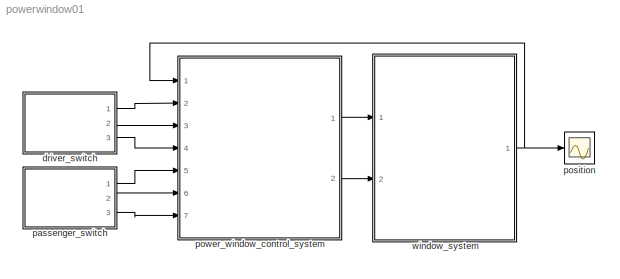
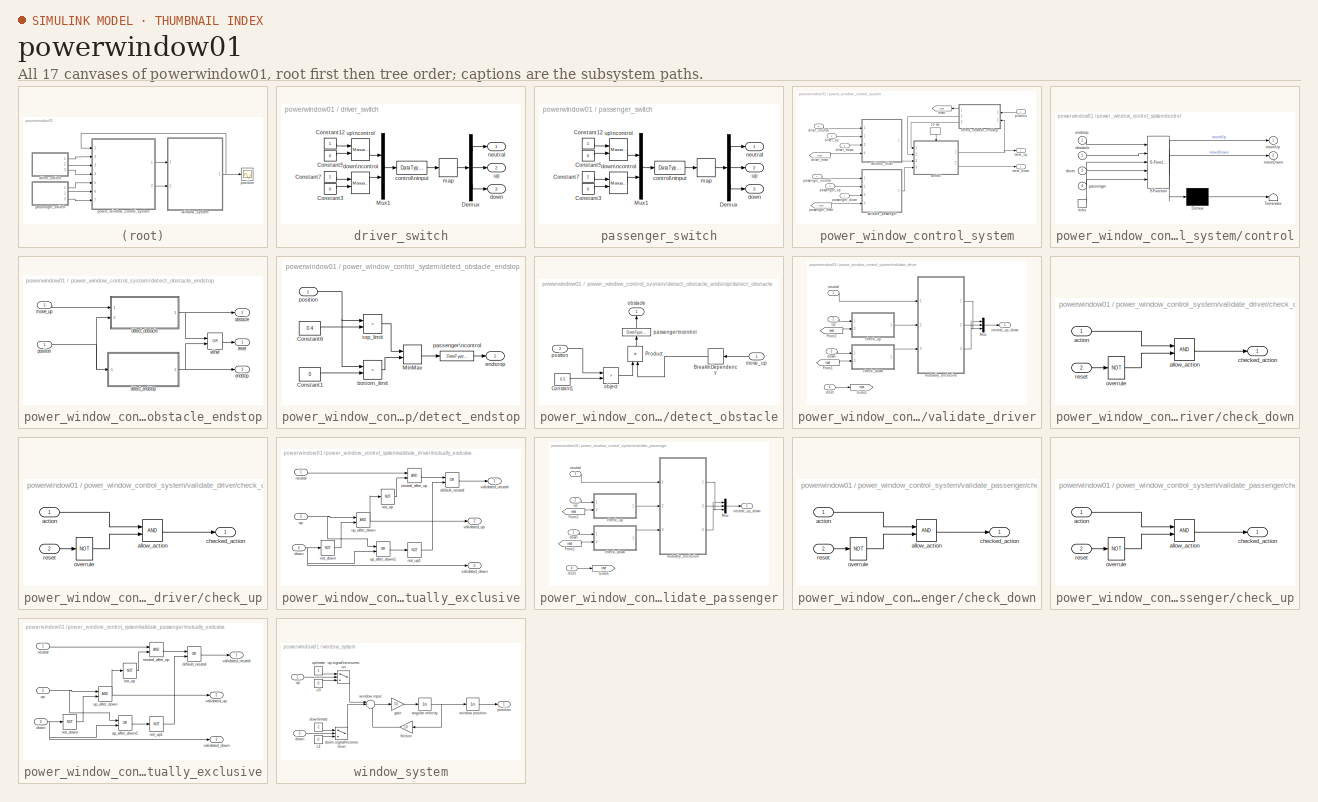
[diagram: thumbnail index - all 17 canvases of the model, root first then tree order]
MODEL powerwindow01
KIND model
BLOCK [SubSystem] driver_switch
  MinAlgLoopOccurrences = off
  Ports = [0, 3]
  PropExecContextAcrossSSBoundary = on
  RTWSystemCode = Auto
  TreatAsAtomicUnit = off
BLOCK [Constant] driver_switch/Constant12
BLOCK [Constant] driver_switch/Constant3
  Value = 0
BLOCK [Constant] driver_switch/Constant5
  Value = 0
BLOCK [Constant] driver_switch/Constant7
BLOCK [Demux] driver_switch/Demux
  Outputs = 3
  Ports = [1, 3]
BLOCK [Mux] driver_switch/Mux1
  DisplayOption = bar
  Inputs = 2
  Ports = [2, 1]
BLOCK [DataTypeConversion] driver_switch/control\ninput
  OutDataTypeMode = boolean
BLOCK [Outport] driver_switch/down
  IconDisplay = Port number
  Port = 3
BLOCK [Reference] driver_switch/down\ncontrol  REF=simulink/Signal\nRouting/Manual Switch
  Ports = [2, 1]
  SourceBlock = simulink/Signal\nRouting/Manual Switch
  SourceType = Manual Switch
  action = 0
  sw = 0
BLOCK [CombinatorialLogic] driver_switch/map
  TruthTable = [1 0 0;0 0 1;0 1 0;1 0 0]
BLOCK [Outport] driver_switch/neutral
  IconDisplay = Port number
BLOCK [Outport] driver_switch/up
  IconDisplay = Port number
  Port = 2
BLOCK [Reference] driver_switch/up\ncontrol  REF=simulink/Signal\nRouting/Manual Switch
  Ports = [2, 1]
  SourceBlock = simulink/Signal\nRouting/Manual Switch
  SourceType = Manual Switch
  action = 0
  sw = 0
BLOCK [SubSystem] passenger_switch
  MinAlgLoopOccurrences = off
  Ports = [0, 3]
  PropExecContextAcrossSSBoundary = on
  RTWSystemCode = Auto
  TreatAsAtomicUnit = off
BLOCK [Constant] passenger_switch/Constant12
BLOCK [Constant] passenger_switch/Constant3
  Value = 0
BLOCK [Constant] passenger_switch/Constant5
  Value = 0
BLOCK [Constant] passenger_switch/Constant7
BLOCK [Demux] passenger_switch/Demux
  Outputs = 3
  Ports = [1, 3]
BLOCK [Mux] passenger_switch/Mux1
  DisplayOption = bar
  Inputs = 2
  Ports = [2, 1]
BLOCK [DataTypeConversion] passenger_switch/control\ninput
  OutDataTypeMode = boolean
BLOCK [Outport] passenger_switch/down
  IconDisplay = Port number
  Port = 3
BLOCK [Reference] passenger_switch/down\ncontrol  REF=simulink/Signal\nRouting/Manual Switch
  Ports = [2, 1]
  SourceBlock = simulink/Signal\nRouting/Manual Switch
  SourceType = Manual Switch
  action = 0
  sw = 0
BLOCK [CombinatorialLogic] passenger_switch/map
  TruthTable = [1 0 0;0 0 1;0 1 0;1 0 0]
BLOCK [Outport] passenger_switch/neutral
  IconDisplay = Port number
BLOCK [Outport] passenger_switch/up
  IconDisplay = Port number
  Port = 2
BLOCK [Reference] passenger_switch/up\ncontrol  REF=simulink/Signal\nRouting/Manual Switch
  Ports = [2, 1]
  SourceBlock = simulink/Signal\nRouting/Manual Switch
  SourceType = Manual Switch
  action = 0
  sw = 0
BLOCK [Scope] position
  DataFormat = Array
  LimitDataPoints = off
  NumInputPorts = 1
  Ports = [1]
  YMax = 0.5
  YMin = -0.05
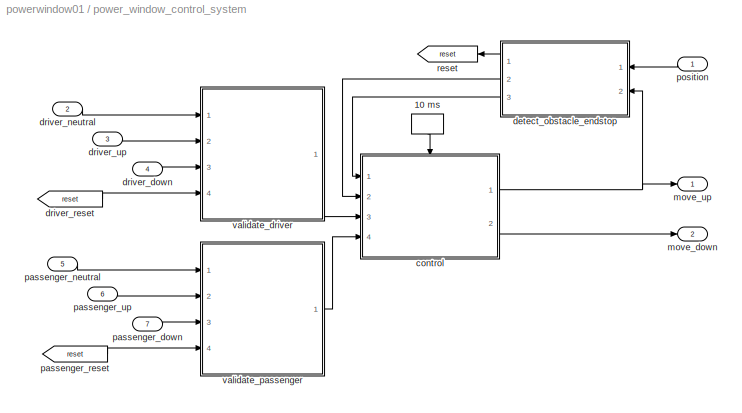
BLOCK [SubSystem] power_window_control_system
  MinAlgLoopOccurrences = off
  Ports = [7, 2]
  PropExecContextAcrossSSBoundary = on
  RTWSystemCode = Auto
  TreatAsAtomicUnit = off
BLOCK [DiscretePulseGenerator] power_window_control_system/10 ms
  Ports = [0, 1]
  SampleTime = 10e-3
BLOCK [SubSystem] power_window_control_system/control
  MaskDescription = Stateflow diagram
  MaskDisplay = plot(sf('Private','sfblk','xIcon'),sf('Private','sfblk','yIcon'));text(0.5,0,sf('Private', 'sfblk', 'tIcon'),'HorizontalAl','Center','VerticalAl','Bottom');
  MaskIconFrame = off
  MaskIconOpaque = off
  MaskIconRotate = none
  MaskIconUnits = autoscale
  MaskSelfModifiable = on
  MaskType = Stateflow
  MinAlgLoopOccurrences = off
  Ports = [4, 2, 0, 1]
  PropExecContextAcrossSSBoundary = on
  RTWSystemCode = Auto
  TreatAsAtomicUnit = on
BLOCK [Demux] power_window_control_system/control/ Demux 
  Outputs = 1
  Ports = [1, 1]
BLOCK [S-Function] power_window_control_system/control/ SFunction 
  FunctionName = sf_sfun
  PortCounts = [5 3]
  Ports = [5, 3]
  Tag = Stateflow S-Function powerwindow01 2
BLOCK [Terminator] power_window_control_system/control/ Terminator 
BLOCK [Inport] power_window_control_system/control/driver
  IconDisplay = Port number
  LatchInput = off
  Port = 3
BLOCK [Inport] power_window_control_system/control/endstop
  IconDisplay = Port number
  LatchInput = off
  Port = 1
BLOCK [Outport] power_window_control_system/control/moveDown
  IconDisplay = Port number
  Port = 2
BLOCK [Outport] power_window_control_system/control/moveUp
  IconDisplay = Port number
BLOCK [Inport] power_window_control_system/control/obstacle
  IconDisplay = Port number
  LatchInput = off
  Port = 2
BLOCK [Inport] power_window_control_system/control/passenger
  IconDisplay = Port number
  LatchInput = off
  Port = 4
BLOCK [TriggerPort] power_window_control_system/control/ticks
  Ports = [0, 1]
  ShowOutputPort = on
  TriggerType = either
BLOCK [SubSystem] power_window_control_system/detect_obstacle_endstop
  MinAlgLoopOccurrences = off
  Ports = [2, 3]
  PropExecContextAcrossSSBoundary = on
  RTWSystemCode = Auto
  TreatAsAtomicUnit = off
BLOCK [SubSystem] power_window_control_system/detect_obstacle_endstop/detect_endstop
  MinAlgLoopOccurrences = off
  Ports = [1, 1]
  PropExecContextAcrossSSBoundary = on
  RTWSystemCode = Auto
  TreatAsAtomicUnit = off
BLOCK [Constant] power_window_control_system/detect_obstacle_endstop/detect_endstop/Constant1
  Value = 0
BLOCK [Constant] power_window_control_system/detect_obstacle_endstop/detect_endstop/Constant6
  Value = 0.4
BLOCK [MinMax] power_window_control_system/detect_obstacle_endstop/detect_endstop/MinMax
  Function = max
  Inputs = 2
  Ports = [2, 1]
BLOCK [RelationalOperator] power_window_control_system/detect_obstacle_endstop/detect_endstop/bottom_limit
  Operator = <
BLOCK [Outport] power_window_control_system/detect_obstacle_endstop/detect_endstop/endstop
  IconDisplay = Port number
BLOCK [DataTypeConversion] power_window_control_system/detect_obstacle_endstop/detect_endstop/passenger\ncontrol
  OutDataTypeMode = boolean
BLOCK [Inport] power_window_control_system/detect_obstacle_endstop/detect_endstop/position
  IconDisplay = Port number
  LatchInput = off
  Port = 1
BLOCK [RelationalOperator] power_window_control_system/detect_obstacle_endstop/detect_endstop/top_limit
  Operator = >
BLOCK [SubSystem] power_window_control_system/detect_obstacle_endstop/detect_obstacle
  MinAlgLoopOccurrences = off
  Ports = [2, 1]
  PropExecContextAcrossSSBoundary = on
  RTWSystemCode = Auto
  TreatAsAtomicUnit = off
BLOCK [Memory] power_window_control_system/detect_obstacle_endstop/detect_obstacle/Break\nDependency
BLOCK [Constant] power_window_control_system/detect_obstacle_endstop/detect_obstacle/Constant1
  Value = 0.3
BLOCK [Product] power_window_control_system/detect_obstacle_endstop/detect_obstacle/Product
  Ports = [2, 1]
  RndMeth = Floor
BLOCK [Inport] power_window_control_system/detect_obstacle_endstop/detect_obstacle/move_up
  IconDisplay = Port number
  LatchInput = off
  Port = 1
BLOCK [RelationalOperator] power_window_control_system/detect_obstacle_endstop/detect_obstacle/object
  Operator = >
BLOCK [Outport] power_window_control_system/detect_obstacle_endstop/detect_obstacle/obstacle
  IconDisplay = Port number
BLOCK [DataTypeConversion] power_window_control_system/detect_obstacle_endstop/detect_obstacle/passenger\ncontrol
  OutDataTypeMode = boolean
BLOCK [Inport] power_window_control_system/detect_obstacle_endstop/detect_obstacle/position
  IconDisplay = Port number
  LatchInput = off
  Port = 2
BLOCK [Logic] power_window_control_system/detect_obstacle_endstop/either
  Operator = OR
  Ports = [2, 1]
BLOCK [Outport] power_window_control_system/detect_obstacle_endstop/endstop
  IconDisplay = Port number
  Port = 3
BLOCK [Inport] power_window_control_system/detect_obstacle_endstop/move_up
  IconDisplay = Port number
  LatchInput = off
  Port = 2
BLOCK [Outport] power_window_control_system/detect_obstacle_endstop/obstacle
  IconDisplay = Port number
  Port = 2
BLOCK [Inport] power_window_control_system/detect_obstacle_endstop/position
  IconDisplay = Port number
  LatchInput = off
  Port = 1
BLOCK [Outport] power_window_control_system/detect_obstacle_endstop/reset
  IconDisplay = Port number
BLOCK [Inport] power_window_control_system/driver_down
  IconDisplay = Port number
  LatchInput = off
  Port = 4
BLOCK [Inport] power_window_control_system/driver_neutral
  IconDisplay = Port number
  LatchInput = off
  Port = 2
BLOCK [From] power_window_control_system/driver_reset
  CloseFcn = tagdialog Close
  DialogController = Simulink.DDGSource
  GotoTag = reset
BLOCK [Inport] power_window_control_system/driver_up
  IconDisplay = Port number
  LatchInput = off
  Port = 3
BLOCK [Outport] power_window_control_system/move_down
  IconDisplay = Port number
  Port = 2
BLOCK [Outport] power_window_control_system/move_up
  IconDisplay = Port number
BLOCK [Inport] power_window_control_system/passenger_down
  IconDisplay = Port number
  LatchInput = off
  Port = 7
BLOCK [Inport] power_window_control_system/passenger_neutral
  IconDisplay = Port number
  LatchInput = off
  Port = 5
BLOCK [From] power_window_control_system/passenger_reset
  CloseFcn = tagdialog Close
  DialogController = Simulink.DDGSource
  GotoTag = reset
BLOCK [Inport] power_window_control_system/passenger_up
  IconDisplay = Port number
  LatchInput = off
  Port = 6
BLOCK [Inport] power_window_control_system/position
  IconDisplay = Port number
  LatchInput = off
  Port = 1
BLOCK [Goto] power_window_control_system/reset
  DialogController = Simulink.DDGSource
  GotoTag = reset
  TagVisibility = local
BLOCK [SubSystem] power_window_control_system/validate_driver
  MinAlgLoopOccurrences = off
  Ports = [4, 1]
  PropExecContextAcrossSSBoundary = on
  RTWSystemCode = Auto
  TreatAsAtomicUnit = off
BLOCK [From] power_window_control_system/validate_driver/From1
  CloseFcn = tagdialog Close
  DialogController = Simulink.DDGSource
  GotoTag = reset
BLOCK [From] power_window_control_system/validate_driver/From2
  CloseFcn = tagdialog Close
  DialogController = Simulink.DDGSource
  GotoTag = reset
BLOCK [Goto] power_window_control_system/validate_driver/Goto1
  DialogController = Simulink.DDGSource
  GotoTag = reset
  TagVisibility = local
BLOCK [Mux] power_window_control_system/validate_driver/Mux
  DisplayOption = bar
  Inputs = 3
  Ports = [3, 1]
BLOCK [SubSystem] power_window_control_system/validate_driver/check_down
  MinAlgLoopOccurrences = off
  Ports = [2, 1]
  PropExecContextAcrossSSBoundary = on
  RTWSystemCode = Auto
  TreatAsAtomicUnit = off
BLOCK [Inport] power_window_control_system/validate_driver/check_down/action
  IconDisplay = Port number
  LatchInput = off
  Port = 1
BLOCK [Logic] power_window_control_system/validate_driver/check_down/allow_action
  Ports = [2, 1]
BLOCK [Outport] power_window_control_system/validate_driver/check_down/checked_action
  IconDisplay = Port number
BLOCK [Logic] power_window_control_system/validate_driver/check_down/overrule
  Operator = NOT
  Ports = [1, 1]
BLOCK [Inport] power_window_control_system/validate_driver/check_down/reset
  IconDisplay = Port number
  LatchInput = off
  Port = 2
BLOCK [SubSystem] power_window_control_system/validate_driver/check_up
  MinAlgLoopOccurrences = off
  Ports = [2, 1]
  PropExecContextAcrossSSBoundary = on
  RTWSystemCode = Auto
  TreatAsAtomicUnit = off
BLOCK [Inport] power_window_control_system/validate_driver/check_up/action
  IconDisplay = Port number
  LatchInput = off
  Port = 1
BLOCK [Logic] power_window_control_system/validate_driver/check_up/allow_action
  Ports = [2, 1]
BLOCK [Outport] power_window_control_system/validate_driver/check_up/checked_action
  IconDisplay = Port number
BLOCK [Logic] power_window_control_system/validate_driver/check_up/overrule
  Operator = NOT
  Ports = [1, 1]
BLOCK [Inport] power_window_control_system/validate_driver/check_up/reset
  IconDisplay = Port number
  LatchInput = off
  Port = 2
BLOCK [Inport] power_window_control_system/validate_driver/down
  IconDisplay = Port number
  LatchInput = off
  Port = 3
BLOCK [SubSystem] power_window_control_system/validate_driver/mutually_exclusive
  MinAlgLoopOccurrences = off
  Ports = [3, 3]
  PropExecContextAcrossSSBoundary = on
  RTWSystemCode = Auto
  TreatAsAtomicUnit = off
BLOCK [Logic] power_window_control_system/validate_driver/mutually_exclusive/default_neutral
  Operator = OR
  Ports = [2, 1]
BLOCK [Inport] power_window_control_system/validate_driver/mutually_exclusive/down
  IconDisplay = Port number
  LatchInput = off
  Port = 3
BLOCK [Inport] power_window_control_system/validate_driver/mutually_exclusive/neutral
  IconDisplay = Port number
  LatchInput = off
  Port = 1
BLOCK [Logic] power_window_control_system/validate_driver/mutually_exclusive/neutral_after_up
  Ports = [2, 1]
BLOCK [Logic] power_window_control_system/validate_driver/mutually_exclusive/not_down
  Operator = NOT
  Ports = [1, 1]
BLOCK [Logic] power_window_control_system/validate_driver/mutually_exclusive/not_up
  Operator = NOT
  Ports = [1, 1]
BLOCK [Logic] power_window_control_system/validate_driver/mutually_exclusive/not_up1
  Operator = NOT
  Ports = [1, 1]
BLOCK [Inport] power_window_control_system/validate_driver/mutually_exclusive/up
  IconDisplay = Port number
  LatchInput = off
  Port = 2
BLOCK [Logic] power_window_control_system/validate_driver/mutually_exclusive/up_after_down
  Ports = [2, 1]
BLOCK [Logic] power_window_control_system/validate_driver/mutually_exclusive/up_after_down1
  Operator = OR
  Ports = [2, 1]
BLOCK [Outport] power_window_control_system/validate_driver/mutually_exclusive/validated_down
  IconDisplay = Port number
  Port = 3
BLOCK [Outport] power_window_control_system/validate_driver/mutually_exclusive/validated_neutral
  IconDisplay = Port number
BLOCK [Outport] power_window_control_system/validate_driver/mutually_exclusive/validated_up
  IconDisplay = Port number
  Port = 2
BLOCK [Inport] power_window_control_system/validate_driver/neutral
  IconDisplay = Port number
  LatchInput = off
  Port = 1
BLOCK [Outport] power_window_control_system/validate_driver/neutral_up_down
  IconDisplay = Port number
BLOCK [Inport] power_window_control_system/validate_driver/reset
  IconDisplay = Port number
  LatchInput = off
  Port = 4
BLOCK [Inport] power_window_control_system/validate_driver/up
  IconDisplay = Port number
  LatchInput = off
  Port = 2
BLOCK [SubSystem] power_window_control_system/validate_passenger
  MinAlgLoopOccurrences = off
  Ports = [4, 1]
  PropExecContextAcrossSSBoundary = on
  RTWSystemCode = Auto
  TreatAsAtomicUnit = off
BLOCK [From] power_window_control_system/validate_passenger/From1
  CloseFcn = tagdialog Close
  DialogController = Simulink.DDGSource
  GotoTag = reset
BLOCK [From] power_window_control_system/validate_passenger/From2
  CloseFcn = tagdialog Close
  DialogController = Simulink.DDGSource
  GotoTag = reset
BLOCK [Goto] power_window_control_system/validate_passenger/Goto1
  DialogController = Simulink.DDGSource
  GotoTag = reset
  TagVisibility = local
BLOCK [Mux] power_window_control_system/validate_passenger/Mux
  DisplayOption = bar
  Inputs = 3
  Ports = [3, 1]
BLOCK [SubSystem] power_window_control_system/validate_passenger/check_down
  MinAlgLoopOccurrences = off
  Ports = [2, 1]
  PropExecContextAcrossSSBoundary = on
  RTWSystemCode = Auto
  TreatAsAtomicUnit = off
BLOCK [Inport] power_window_control_system/validate_passenger/check_down/action
  IconDisplay = Port number
  LatchInput = off
  Port = 1
BLOCK [Logic] power_window_control_system/validate_passenger/check_down/allow_action
  Ports = [2, 1]
BLOCK [Outport] power_window_control_system/validate_passenger/check_down/checked_action
  IconDisplay = Port number
BLOCK [Logic] power_window_control_system/validate_passenger/check_down/overrule
  Operator = NOT
  Ports = [1, 1]
BLOCK [Inport] power_window_control_system/validate_passenger/check_down/reset
  IconDisplay = Port number
  LatchInput = off
  Port = 2
BLOCK [SubSystem] power_window_control_system/validate_passenger/check_up
  MinAlgLoopOccurrences = off
  Ports = [2, 1]
  PropExecContextAcrossSSBoundary = on
  RTWSystemCode = Auto
  TreatAsAtomicUnit = off
BLOCK [Inport] power_window_control_system/validate_passenger/check_up/action
  IconDisplay = Port number
  LatchInput = off
  Port = 1
BLOCK [Logic] power_window_control_system/validate_passenger/check_up/allow_action
  Ports = [2, 1]
BLOCK [Outport] power_window_control_system/validate_passenger/check_up/checked_action
  IconDisplay = Port number
BLOCK [Logic] power_window_control_system/validate_passenger/check_up/overrule
  Operator = NOT
  Ports = [1, 1]
BLOCK [Inport] power_window_control_system/validate_passenger/check_up/reset
  IconDisplay = Port number
  LatchInput = off
  Port = 2
BLOCK [Inport] power_window_control_system/validate_passenger/down
  IconDisplay = Port number
  LatchInput = off
  Port = 3
BLOCK [SubSystem] power_window_control_system/validate_passenger/mutually_exclusive
  MinAlgLoopOccurrences = off
  Ports = [3, 3]
  PropExecContextAcrossSSBoundary = on
  RTWSystemCode = Auto
  TreatAsAtomicUnit = off
BLOCK [Logic] power_window_control_system/validate_passenger/mutually_exclusive/default_neutral
  Operator = OR
  Ports = [2, 1]
BLOCK [Inport] power_window_control_system/validate_passenger/mutually_exclusive/down
  IconDisplay = Port number
  LatchInput = off
  Port = 3
BLOCK [Inport] power_window_control_system/validate_passenger/mutually_exclusive/neutral
  IconDisplay = Port number
  LatchInput = off
  Port = 1
BLOCK [Logic] power_window_control_system/validate_passenger/mutually_exclusive/neutral_after_up
  Ports = [2, 1]
BLOCK [Logic] power_window_control_system/validate_passenger/mutually_exclusive/not_down
  Operator = NOT
  Ports = [1, 1]
BLOCK [Logic] power_window_control_system/validate_passenger/mutually_exclusive/not_up
  Operator = NOT
  Ports = [1, 1]
BLOCK [Logic] power_window_control_system/validate_passenger/mutually_exclusive/not_up1
  Operator = NOT
  Ports = [1, 1]
BLOCK [Inport] power_window_control_system/validate_passenger/mutually_exclusive/up
  IconDisplay = Port number
  LatchInput = off
  Port = 2
BLOCK [Logic] power_window_control_system/validate_passenger/mutually_exclusive/up_after_down
  Ports = [2, 1]
BLOCK [Logic] power_window_control_system/validate_passenger/mutually_exclusive/up_after_down1
  Operator = OR
  Ports = [2, 1]
BLOCK [Outport] power_window_control_system/validate_passenger/mutually_exclusive/validated_down
  IconDisplay = Port number
  Port = 3
BLOCK [Outport] power_window_control_system/validate_passenger/mutually_exclusive/validated_neutral
  IconDisplay = Port number
BLOCK [Outport] power_window_control_system/validate_passenger/mutually_exclusive/validated_up
  IconDisplay = Port number
  Port = 2
BLOCK [Inport] power_window_control_system/validate_passenger/neutral
  IconDisplay = Port number
  LatchInput = off
  Port = 1
BLOCK [Outport] power_window_control_system/validate_passenger/neutral_up_down
  IconDisplay = Port number
BLOCK [Inport] power_window_control_system/validate_passenger/reset
  IconDisplay = Port number
  LatchInput = off
  Port = 4
BLOCK [Inport] power_window_control_system/validate_passenger/up
  IconDisplay = Port number
  LatchInput = off
  Port = 2
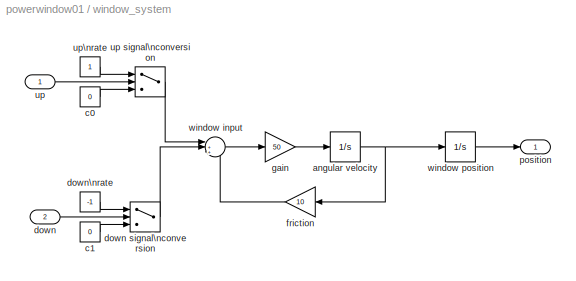
BLOCK [SubSystem] window_system
  MinAlgLoopOccurrences = off
  Ports = [2, 1]
  PropExecContextAcrossSSBoundary = on
  RTWSystemCode = Auto
  TreatAsAtomicUnit = off
BLOCK [Integrator] window_system/angular velocity
  Ports = [1, 1]
BLOCK [Constant] window_system/c0
  Value = 0
BLOCK [Constant] window_system/c1
  Value = 0
BLOCK [Inport] window_system/down
  IconDisplay = Port number
  LatchInput = off
  Port = 2
BLOCK [Switch] window_system/down signal\nconversion
  SaturateOnIntegerOverflow = off
  Threshold = 0.5
BLOCK [Constant] window_system/down\nrate
  Value = -1
BLOCK [Gain] window_system/friction
  Gain = 10
BLOCK [Gain] window_system/gain
  Gain = 50
BLOCK [Outport] window_system/position
  IconDisplay = Port number
BLOCK [Inport] window_system/up
  IconDisplay = Port number
  LatchInput = off
  Port = 1
BLOCK [Switch] window_system/up signal\nconversion
  SaturateOnIntegerOverflow = off
  Threshold = 0.5
BLOCK [Constant] window_system/up\nrate
BLOCK [Sum] window_system/window input
  IconShape = round
  Inputs = |++-
  Ports = [3, 1]
BLOCK [Integrator] window_system/window position
  Ports = [1, 1]
LINE driver_switch/Constant12:1 -> driver_switch/up\ncontrol:1
LINE driver_switch/Constant3:1 -> driver_switch/down\ncontrol:2
LINE driver_switch/Constant5:1 -> driver_switch/up\ncontrol:2
LINE driver_switch/Constant7:1 -> driver_switch/down\ncontrol:1
LINE driver_switch/Demux:1 -> driver_switch/neutral:1
LINE driver_switch/Demux:2 -> driver_switch/up:1
LINE driver_switch/Demux:3 -> driver_switch/down:1
LINE driver_switch/Mux1:1 -> driver_switch/control\ninput:1
LINE driver_switch/control\ninput:1 -> driver_switch/map:1
LINE driver_switch/down\ncontrol:1 -> driver_switch/Mux1:2
LINE driver_switch/map:1 -> driver_switch/Demux:1
LINE driver_switch/up\ncontrol:1 -> driver_switch/Mux1:1
LINE driver_switch:1 -> power_window_control_system:2
LINE driver_switch:2 -> power_window_control_system:3
LINE driver_switch:3 -> power_window_control_system:4
LINE passenger_switch/Constant12:1 -> passenger_switch/up\ncontrol:1
LINE passenger_switch/Constant3:1 -> passenger_switch/down\ncontrol:2
LINE passenger_switch/Constant5:1 -> passenger_switch/up\ncontrol:2
LINE passenger_switch/Constant7:1 -> passenger_switch/down\ncontrol:1
LINE passenger_switch/Demux:1 -> passenger_switch/neutral:1
LINE passenger_switch/Demux:2 -> passenger_switch/up:1
LINE passenger_switch/Demux:3 -> passenger_switch/down:1
LINE passenger_switch/Mux1:1 -> passenger_switch/control\ninput:1
LINE passenger_switch/control\ninput:1 -> passenger_switch/map:1
LINE passenger_switch/down\ncontrol:1 -> passenger_switch/Mux1:2
LINE passenger_switch/map:1 -> passenger_switch/Demux:1
LINE passenger_switch/up\ncontrol:1 -> passenger_switch/Mux1:1
LINE passenger_switch:1 -> power_window_control_system:5
LINE passenger_switch:2 -> power_window_control_system:6
LINE passenger_switch:3 -> power_window_control_system:7
LINE power_window_control_system/10 ms:1 -> power_window_control_system/control:trigger
LINE power_window_control_system/control/ Demux :1 -> power_window_control_system/control/ Terminator :1
LINE power_window_control_system/control/ SFunction :1 -> power_window_control_system/control/ Demux :1
LINE power_window_control_system/control/ SFunction :2 -> power_window_control_system/control/moveUp:1
LINE power_window_control_system/control/ SFunction :3 -> power_window_control_system/control/moveDown:1
LINE power_window_control_system/control/driver:1 -> power_window_control_system/control/ SFunction :3
LINE power_window_control_system/control/endstop:1 -> power_window_control_system/control/ SFunction :1
LINE power_window_control_system/control/obstacle:1 -> power_window_control_system/control/ SFunction :2
LINE power_window_control_system/control/passenger:1 -> power_window_control_system/control/ SFunction :4
LINE power_window_control_system/control/ticks:1 -> power_window_control_system/control/ SFunction :5
NET power_window_control_system/control:1 -> power_window_control_system/detect_obstacle_endstop:2, power_window_control_system/move_up:1
LINE power_window_control_system/control:2 -> power_window_control_system/move_down:1
LINE power_window_control_system/detect_obstacle_endstop/detect_endstop/Constant1:1 -> power_window_control_system/detect_obstacle_endstop/detect_endstop/bottom_limit:2
LINE power_window_control_system/detect_obstacle_endstop/detect_endstop/Constant6:1 -> power_window_control_system/detect_obstacle_endstop/detect_endstop/top_limit:2
LINE power_window_control_system/detect_obstacle_endstop/detect_endstop/MinMax:1 -> power_window_control_system/detect_obstacle_endstop/detect_endstop/passenger\ncontrol:1
LINE power_window_control_system/detect_obstacle_endstop/detect_endstop/bottom_limit:1 -> power_window_control_system/detect_obstacle_endstop/detect_endstop/MinMax:2
LINE power_window_control_system/detect_obstacle_endstop/detect_endstop/passenger\ncontrol:1 -> power_window_control_system/detect_obstacle_endstop/detect_endstop/endstop:1
NET power_window_control_system/detect_obstacle_endstop/detect_endstop/position:1 -> power_window_control_system/detect_obstacle_endstop/detect_endstop/bottom_limit:1, power_window_control_system/detect_obstacle_endstop/detect_endstop/top_limit:1
LINE power_window_control_system/detect_obstacle_endstop/detect_endstop/top_limit:1 -> power_window_control_system/detect_obstacle_endstop/detect_endstop/MinMax:1
NET power_window_control_system/detect_obstacle_endstop/detect_endstop:1 -> power_window_control_system/detect_obstacle_endstop/either:2, power_window_control_system/detect_obstacle_endstop/endstop:1
LINE power_window_control_system/detect_obstacle_endstop/detect_obstacle/Break\nDependency:1 -> power_window_control_system/detect_obstacle_endstop/detect_obstacle/Product:2
LINE power_window_control_system/detect_obstacle_endstop/detect_obstacle/Constant1:1 -> power_window_control_system/detect_obstacle_endstop/detect_obstacle/object:2
LINE power_window_control_system/detect_obstacle_endstop/detect_obstacle/Product:1 -> power_window_control_system/detect_obstacle_endstop/detect_obstacle/passenger\ncontrol:1
LINE power_window_control_system/detect_obstacle_endstop/detect_obstacle/move_up:1 -> power_window_control_system/detect_obstacle_endstop/detect_obstacle/Break\nDependency:1
LINE power_window_control_system/detect_obstacle_endstop/detect_obstacle/object:1 -> power_window_control_system/detect_obstacle_endstop/detect_obstacle/Product:1
LINE power_window_control_system/detect_obstacle_endstop/detect_obstacle/passenger\ncontrol:1 -> power_window_control_system/detect_obstacle_endstop/detect_obstacle/obstacle:1
LINE power_window_control_system/detect_obstacle_endstop/detect_obstacle/position:1 -> power_window_control_system/detect_obstacle_endstop/detect_obstacle/object:1
NET power_window_control_system/detect_obstacle_endstop/detect_obstacle:1 -> power_window_control_system/detect_obstacle_endstop/either:1, power_window_control_system/detect_obstacle_endstop/obstacle:1
LINE power_window_control_system/detect_obstacle_endstop/either:1 -> power_window_control_system/detect_obstacle_endstop/reset:1
LINE power_window_control_system/detect_obstacle_endstop/move_up:1 -> power_window_control_system/detect_obstacle_endstop/detect_obstacle:1
NET power_window_control_system/detect_obstacle_endstop/position:1 -> power_window_control_system/detect_obstacle_endstop/detect_endstop:1, power_window_control_system/detect_obstacle_endstop/detect_obstacle:2
LINE power_window_control_system/detect_obstacle_endstop:1 -> power_window_control_system/reset:1
LINE power_window_control_system/detect_obstacle_endstop:2 -> power_window_control_system/control:2
LINE power_window_control_system/detect_obstacle_endstop:3 -> power_window_control_system/control:1
LINE power_window_control_system/driver_down:1 -> power_window_control_system/validate_driver:3
LINE power_window_control_system/driver_neutral:1 -> power_window_control_system/validate_driver:1
LINE power_window_control_system/driver_reset:1 -> power_window_control_system/validate_driver:4
LINE power_window_control_system/driver_up:1 -> power_window_control_system/validate_driver:2
LINE power_window_control_system/passenger_down:1 -> power_window_control_system/validate_passenger:3
LINE power_window_control_system/passenger_neutral:1 -> power_window_control_system/validate_passenger:1
LINE power_window_control_system/passenger_reset:1 -> power_window_control_system/validate_passenger:4
LINE power_window_control_system/passenger_up:1 -> power_window_control_system/validate_passenger:2
LINE power_window_control_system/position:1 -> power_window_control_system/detect_obstacle_endstop:1
LINE power_window_control_system/validate_driver/From1:1 -> power_window_control_system/validate_driver/check_down:2
LINE power_window_control_system/validate_driver/From2:1 -> power_window_control_system/validate_driver/check_up:2
LINE power_window_control_system/validate_driver/Mux:1 -> power_window_control_system/validate_driver/neutral_up_down:1
LINE power_window_control_system/validate_driver/check_down/action:1 -> power_window_control_system/validate_driver/check_down/allow_action:1
LINE power_window_control_system/validate_driver/check_down/allow_action:1 -> power_window_control_system/validate_driver/check_down/checked_action:1
LINE power_window_control_system/validate_driver/check_down/overrule:1 -> power_window_control_system/validate_driver/check_down/allow_action:2
LINE power_window_control_system/validate_driver/check_down/reset:1 -> power_window_control_system/validate_driver/check_down/overrule:1
LINE power_window_control_system/validate_driver/check_down:1 -> power_window_control_system/validate_driver/mutually_exclusive:3
LINE power_window_control_system/validate_driver/check_up/action:1 -> power_window_control_system/validate_driver/check_up/allow_action:1
LINE power_window_control_system/validate_driver/check_up/allow_action:1 -> power_window_control_system/validate_driver/check_up/checked_action:1
LINE power_window_control_system/validate_driver/check_up/overrule:1 -> power_window_control_system/validate_driver/check_up/allow_action:2
LINE power_window_control_system/validate_driver/check_up/reset:1 -> power_window_control_system/validate_driver/check_up/overrule:1
LINE power_window_control_system/validate_driver/check_up:1 -> power_window_control_system/validate_driver/mutually_exclusive:2
LINE power_window_control_system/validate_driver/down:1 -> power_window_control_system/validate_driver/check_down:1
LINE power_window_control_system/validate_driver/mutually_exclusive/default_neutral:1 -> power_window_control_system/validate_driver/mutually_exclusive/validated_neutral:1
NET power_window_control_system/validate_driver/mutually_exclusive/down:1 -> power_window_control_system/validate_driver/mutually_exclusive/not_down:1, power_window_control_system/validate_driver/mutually_exclusive/up_after_down1:2, power_window_control_system/validate_driver/mutually_exclusive/validated_down:1
LINE power_window_control_system/validate_driver/mutually_exclusive/neutral:1 -> power_window_control_system/validate_driver/mutually_exclusive/neutral_after_up:1
LINE power_window_control_system/validate_driver/mutually_exclusive/neutral_after_up:1 -> power_window_control_system/validate_driver/mutually_exclusive/default_neutral:1
LINE power_window_control_system/validate_driver/mutually_exclusive/not_down:1 -> power_window_control_system/validate_driver/mutually_exclusive/up_after_down:2
LINE power_window_control_system/validate_driver/mutually_exclusive/not_up1:1 -> power_window_control_system/validate_driver/mutually_exclusive/default_neutral:2
LINE power_window_control_system/validate_driver/mutually_exclusive/not_up:1 -> power_window_control_system/validate_driver/mutually_exclusive/neutral_after_up:2
NET power_window_control_system/validate_driver/mutually_exclusive/up:1 -> power_window_control_system/validate_driver/mutually_exclusive/up_after_down1:1, power_window_control_system/validate_driver/mutually_exclusive/up_after_down:1
LINE power_window_control_system/validate_driver/mutually_exclusive/up_after_down1:1 -> power_window_control_system/validate_driver/mutually_exclusive/not_up1:1
NET power_window_control_system/validate_driver/mutually_exclusive/up_after_down:1 -> power_window_control_system/validate_driver/mutually_exclusive/not_up:1, power_window_control_system/validate_driver/mutually_exclusive/validated_up:1
LINE power_window_control_system/validate_driver/mutually_exclusive:1 -> power_window_control_system/validate_driver/Mux:1
LINE power_window_control_system/validate_driver/mutually_exclusive:2 -> power_window_control_system/validate_driver/Mux:2
LINE power_window_control_system/validate_driver/mutually_exclusive:3 -> power_window_control_system/validate_driver/Mux:3
LINE power_window_control_system/validate_driver/neutral:1 -> power_window_control_system/validate_driver/mutually_exclusive:1
LINE power_window_control_system/validate_driver/reset:1 -> power_window_control_system/validate_driver/Goto1:1
LINE power_window_control_system/validate_driver/up:1 -> power_window_control_system/validate_driver/check_up:1
LINE power_window_control_system/validate_driver:1 -> power_window_control_system/control:3
LINE power_window_control_system/validate_passenger/From1:1 -> power_window_control_system/validate_passenger/check_down:2
LINE power_window_control_system/validate_passenger/From2:1 -> power_window_control_system/validate_passenger/check_up:2
LINE power_window_control_system/validate_passenger/Mux:1 -> power_window_control_system/validate_passenger/neutral_up_down:1
LINE power_window_control_system/validate_passenger/check_down/action:1 -> power_window_control_system/validate_passenger/check_down/allow_action:1
LINE power_window_control_system/validate_passenger/check_down/allow_action:1 -> power_window_control_system/validate_passenger/check_down/checked_action:1
LINE power_window_control_system/validate_passenger/check_down/overrule:1 -> power_window_control_system/validate_passenger/check_down/allow_action:2
LINE power_window_control_system/validate_passenger/check_down/reset:1 -> power_window_control_system/validate_passenger/check_down/overrule:1
LINE power_window_control_system/validate_passenger/check_down:1 -> power_window_control_system/validate_passenger/mutually_exclusive:3
LINE power_window_control_system/validate_passenger/check_up/action:1 -> power_window_control_system/validate_passenger/check_up/allow_action:1
LINE power_window_control_system/validate_passenger/check_up/allow_action:1 -> power_window_control_system/validate_passenger/check_up/checked_action:1
LINE power_window_control_system/validate_passenger/check_up/overrule:1 -> power_window_control_system/validate_passenger/check_up/allow_action:2
LINE power_window_control_system/validate_passenger/check_up/reset:1 -> power_window_control_system/validate_passenger/check_up/overrule:1
LINE power_window_control_system/validate_passenger/check_up:1 -> power_window_control_system/validate_passenger/mutually_exclusive:2
LINE power_window_control_system/validate_passenger/down:1 -> power_window_control_system/validate_passenger/check_down:1
LINE power_window_control_system/validate_passenger/mutually_exclusive/default_neutral:1 -> power_window_control_system/validate_passenger/mutually_exclusive/validated_neutral:1
NET power_window_control_system/validate_passenger/mutually_exclusive/down:1 -> power_window_control_system/validate_passenger/mutually_exclusive/not_down:1, power_window_control_system/validate_passenger/mutually_exclusive/up_after_down1:2, power_window_control_system/validate_passenger/mutually_exclusive/validated_down:1
LINE power_window_control_system/validate_passenger/mutually_exclusive/neutral:1 -> power_window_control_system/validate_passenger/mutually_exclusive/neutral_after_up:1
LINE power_window_control_system/validate_passenger/mutually_exclusive/neutral_after_up:1 -> power_window_control_system/validate_passenger/mutually_exclusive/default_neutral:1
LINE power_window_control_system/validate_passenger/mutually_exclusive/not_down:1 -> power_window_control_system/validate_passenger/mutually_exclusive/up_after_down:2
LINE power_window_control_system/validate_passenger/mutually_exclusive/not_up1:1 -> power_window_control_system/validate_passenger/mutually_exclusive/default_neutral:2
LINE power_window_control_system/validate_passenger/mutually_exclusive/not_up:1 -> power_window_control_system/validate_passenger/mutually_exclusive/neutral_after_up:2
NET power_window_control_system/validate_passenger/mutually_exclusive/up:1 -> power_window_control_system/validate_passenger/mutually_exclusive/up_after_down1:1, power_window_control_system/validate_passenger/mutually_exclusive/up_after_down:1
LINE power_window_control_system/validate_passenger/mutually_exclusive/up_after_down1:1 -> power_window_control_system/validate_passenger/mutually_exclusive/not_up1:1
NET power_window_control_system/validate_passenger/mutually_exclusive/up_after_down:1 -> power_window_control_system/validate_passenger/mutually_exclusive/not_up:1, power_window_control_system/validate_passenger/mutually_exclusive/validated_up:1
LINE power_window_control_system/validate_passenger/mutually_exclusive:1 -> power_window_control_system/validate_passenger/Mux:1
LINE power_window_control_system/validate_passenger/mutually_exclusive:2 -> power_window_control_system/validate_passenger/Mux:2
LINE power_window_control_system/validate_passenger/mutually_exclusive:3 -> power_window_control_system/validate_passenger/Mux:3
LINE power_window_control_system/validate_passenger/neutral:1 -> power_window_control_system/validate_passenger/mutually_exclusive:1
LINE power_window_control_system/validate_passenger/reset:1 -> power_window_control_system/validate_passenger/Goto1:1
LINE power_window_control_system/validate_passenger/up:1 -> power_window_control_system/validate_passenger/check_up:1
LINE power_window_control_system/validate_passenger:1 -> power_window_control_system/control:4
LINE power_window_control_system:1 -> window_system:1
LINE power_window_control_system:2 -> window_system:2
NET window_system/angular velocity:1 -> window_system/friction:1, window_system/window position:1
LINE window_system/c0:1 -> window_system/up signal\nconversion:3
LINE window_system/c1:1 -> window_system/down signal\nconversion:3
LINE window_system/down signal\nconversion:1 -> window_system/window input:2
LINE window_system/down:1 -> window_system/down signal\nconversion:2
LINE window_system/down\nrate:1 -> window_system/down signal\nconversion:1
LINE window_system/friction:1 -> window_system/window input:3
LINE window_system/gain:1 -> window_system/angular velocity:1
LINE window_system/up signal\nconversion:1 -> window_system/window input:1
LINE window_system/up:1 -> window_system/up signal\nconversion:2
LINE window_system/up\nrate:1 -> window_system/up signal\nconversion:1
LINE window_system/window input:1 -> window_system/gain:1
LINE window_system/window position:1 -> window_system/position:1
NET window_system:1 -> position:1, power_window_control_system:1
note: NET lines group one-source signal fan-out (src -> all destinations, sorted); 1:1 wires keep LINE
CHART power_window_control_system/control states=20 transitions=33
  STATE_LABEL 'passengerneutral\\nentry:\\nmoveUp = 0;\\nmoveDown = 0;'
  STATE_LABEL 'emergencyDown\\nentry:\\nmoveUp = 0;\\nmoveDown = 1;'
  STATE_LABEL 'passengerUp\\nentry: moveUp = 1;\\nexit: moveUp = 0;'
  STATE_LABEL 'passengerDown\\nentry: moveDown = 1;\\nexit: moveDown = 0;'
  STATE_LABEL 'iniPassengerUp'
  STATE_LABEL 'iniPassengerDown'
  STATE_LABEL 'PassengerUp'
  STATE_LABEL 'autoPassengerUp'
  STATE_LABEL 'passengerDown'
  STATE_LABEL 'autoPassengerDown'
  STATE_LABEL 'driverUp\\nentry: moveUp = 1;\\nexit: moveUp = 0;'
  STATE_LABEL 'driverDown\\nentry: moveDown = 1;\\nexit: moveDown = 0;'
  STATE_LABEL 'driverNeutral\\nentry:\\nmoveUp = 0;\\nmoveDown = 0;'
  STATE_LABEL 'iniDriverDown'
  STATE_LABEL 'DriverDown'
  STATE_LABEL 'autoDriverDown'
  STATE_LABEL 'iniDriverUp'
  STATE_LABEL 'DriverUp'
  STATE_LABEL 'autoDriverUp'
  STATE_LABEL 'safe'
